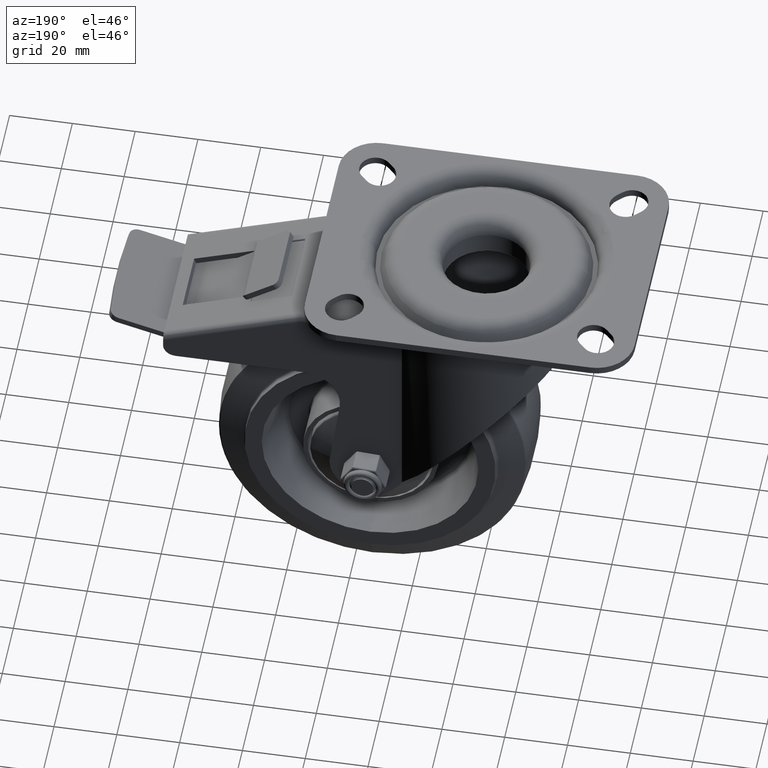
[diagram: clean part render]
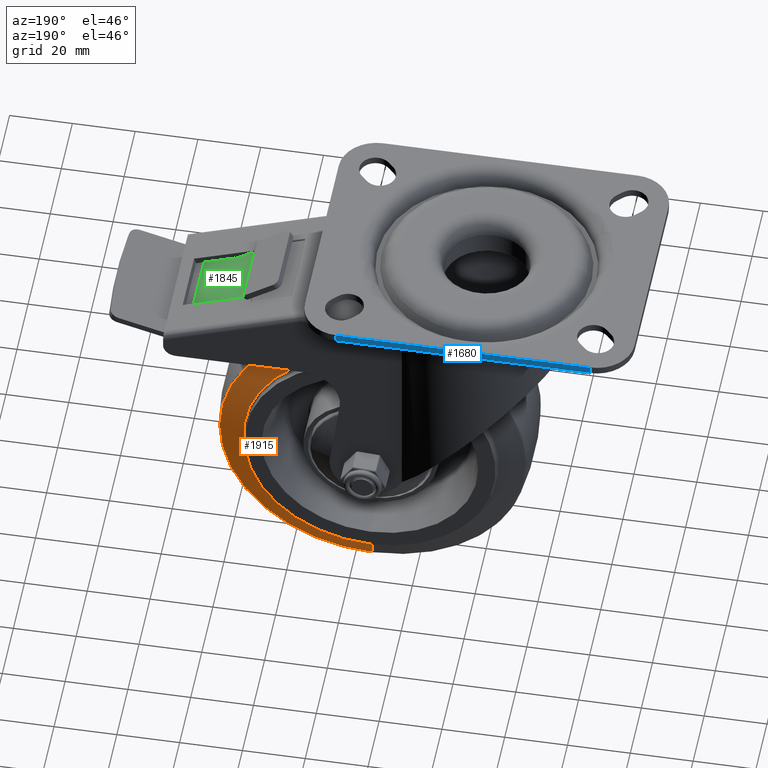
[diagram: same view with three faces highlighted in distinct colors, each labeled with its STEP entity id]
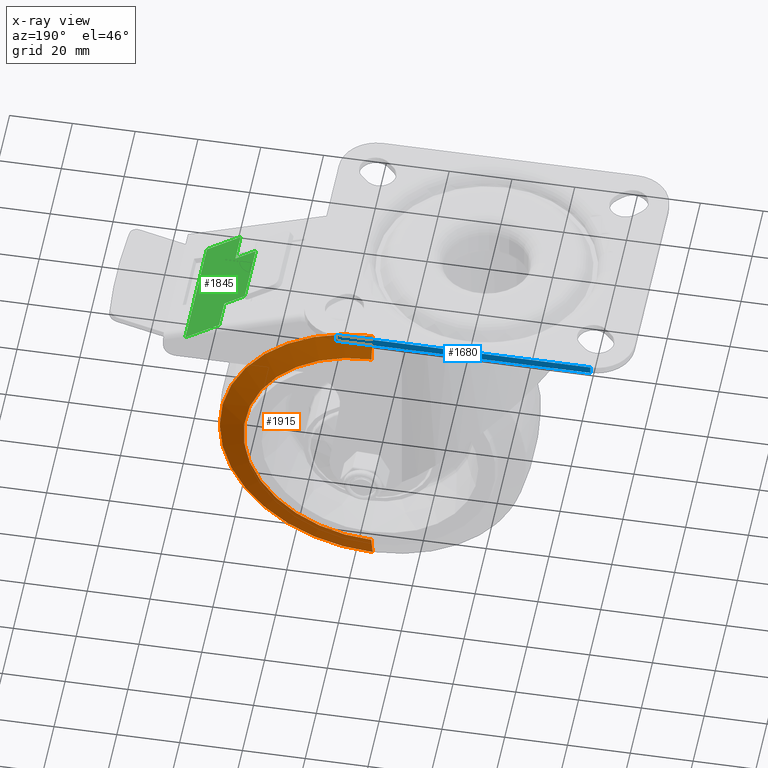
[diagram: x-ray of the same camera — body ghosted, the three highlighted faces saturated]
A machine part, auxiliary view with three faces highlighted in distinct colors.
The next image is the same camera in x-ray (body ghosted, the three faces saturated) — at least one of them is partly hidden behind the body in this view.
Their STEP definitions:

[orange] entity #1915 — the highlighted conical surface has half-angle 73.111 deg.
#1915=ADVANCED_FACE('38:11627',(#3556),#3557,.T.);
#3556=FACE_OUTER_BOUND('',#6462,.T.);
#3557=CONICAL_SURFACE('',#6463,0.044361281435328,1.27602925302234);
#6462=EDGE_LOOP('',(#16371,#16372,#16373,#16374));
#6463=AXIS2_PLACEMENT_3D('',#16375,#16376,#16377);
#16371=ORIENTED_EDGE('',*,*,#24078,.F.);
#16372=ORIENTED_EDGE('',*,*,#24072,.F.);
#16373=ORIENTED_EDGE('',*,*,#24079,.F.);
#16374=ORIENTED_EDGE('',*,*,#24080,.F.);
#16375=CARTESIAN_POINT('',(0.0,0.0144258634737131,0.0));
#16376=DIRECTION('',(-0.0,-1.0,0.0));
#16377=DIRECTION('',(0.0,0.0,1.0));
#24072=EDGE_CURVE('37:114500',#27586,#27588,#27589,.T.);
#24078=EDGE_CURVE('',#27588,#27599,#27600,.T.);
#24079=EDGE_CURVE('',#27601,#27586,#27602,.T.);
#24080=EDGE_CURVE('38:12224',#27599,#27601,#27603,.T.);
#27586=VERTEX_POINT('',#33647);
#27588=VERTEX_POINT('',#33649);
#27589=CIRCLE('',#33650,0.0487225628706559);
#27599=VERTEX_POINT('',#33662);
#27600=LINE('',#33663,#33664);
#27601=VERTEX_POINT('',#33665);
#27602=LINE('',#33666,#33667);
#27603=CIRCLE('',#33668,0.0407094830220747);
#33647=CARTESIAN_POINT('',(-5.96679306658044E-18,0.0131017269474262,-0.0487225628706559));
#33649=CARTESIAN_POINT('',(0.0,0.0131017269474262,0.0487225628706559));
#33650=AXIS2_PLACEMENT_3D('',#42645,#42646,#42647);
#33662=CARTESIAN_POINT('',(9.97094761558547E-18,0.0155345925794424,0.0407094830220747));
#33663=CARTESIAN_POINT('',(5.43269013158493E-18,0.0144258634737131,0.044361281435328));
#33664=VECTOR('',#42659,1.0);
#33665=CARTESIAN_POINT('',(-9.97094761558547E-18,0.0155345925794424,-0.0407094830220747));
#33666=CARTESIAN_POINT('',(-5.43269013158493E-18,0.0144258634737131,-0.044361281435328));
#33667=VECTOR('',#42660,1.0);
#33668=AXIS2_PLACEMENT_3D('',#42661,#42662,#42663);
#42645=CARTESIAN_POINT('',(0.0,0.0131017269474262,8.61381393508886E-20));
#42646=DIRECTION('',(-0.0,-1.0,-6.57456377289338E-18));
#42647=DIRECTION('',(0.0,-6.57456377289338E-18,1.0));
#42659=DIRECTION('',(-1.17182758345179E-16,0.290516977925249,-0.956869837301386));
#42660=DIRECTION('',(-1.17182758345179E-16,-0.290516977925249,-0.956869837301386));
#42661=CARTESIAN_POINT('',(0.0,0.0155345925794424,0.0));
#42662=DIRECTION('',(0.0,1.0,0.0));
#42663=DIRECTION('',(-1.22464679914735E-16,0.0,-1.0));

[blue] entity #1680 — the highlighted planar face has unit normal (0, 1, 0).
#1680=ADVANCED_FACE('99:63520',(#3173),#3174,.T.);
#3173=FACE_OUTER_BOUND('',#5589,.T.);
#3174=PLANE('',#5590);
#5589=EDGE_LOOP('',(#14838,#14839,#14840,#14841));
#5590=AXIS2_PLACEMENT_3D('',#14842,#14843,#14844);
#14838=ORIENTED_EDGE('',*,*,#23632,.F.);
#14839=ORIENTED_EDGE('',*,*,#23410,.T.);
#14840=ORIENTED_EDGE('',*,*,#23217,.F.);
#14841=ORIENTED_EDGE('',*,*,#23388,.T.);
#14842=CARTESIAN_POINT('',(0.0,0.0425,0.0));
#14843=DIRECTION('',(-0.0,1.0,0.0));
#14844=DIRECTION('',(1.0,0.0,0.0));
#23217=EDGE_CURVE('99:64660',#26184,#26186,#26187,.T.);
#23388=EDGE_CURVE('99:63895',#26184,#26504,#26506,.T.);
#23410=EDGE_CURVE('99:63964',#26538,#26186,#26539,.T.);
#23632=EDGE_CURVE('99:64651',#26538,#26504,#26867,.T.);
#26184=VERTEX_POINT('',#30984);
#26186=VERTEX_POINT('',#30986);
#26187=LINE('',#30987,#30988);
#26504=VERTEX_POINT('',#31371);
#26506=LINE('',#31373,#31374);
#26538=VERTEX_POINT('',#31416);
#26539=LINE('',#31417,#31418);
#26867=LINE('',#31950,#31951);
#30984=CARTESIAN_POINT('',(-0.0405,0.0425,0.0));
#30986=CARTESIAN_POINT('',(-0.0405,0.0425,-0.0025));
#30987=CARTESIAN_POINT('',(-0.0405,0.0425,0.0));
#30988=VECTOR('',#41282,1.0);
#31371=CARTESIAN_POINT('',(0.0405,0.0425,0.0));
#31373=CARTESIAN_POINT('',(-0.0525,0.0425,0.0));
#31374=VECTOR('',#41661,1.0);
#31416=CARTESIAN_POINT('',(0.0405,0.0425,-0.0025));
#31417=CARTESIAN_POINT('',(-0.0525,0.0425,-0.0025));
#31418=VECTOR('',#41705,1.0);
#31950=CARTESIAN_POINT('',(0.0405,0.0425,0.0));
#31951=VECTOR('',#41961,1.0);
#41282=DIRECTION('',(0.0,0.0,-1.0));
#41661=DIRECTION('',(1.0,0.0,0.0));
#41705=DIRECTION('',(-1.0,-0.0,-0.0));
#41961=DIRECTION('',(0.0,0.0,1.0));

[green] entity #1845 — the highlighted planar face has unit normal (0.5717, 0, 0.8204).
#1845=ADVANCED_FACE('118:13413',(#3491),#3492,.T.);
#3491=FACE_OUTER_BOUND('',#6397,.T.);
#3492=PLANE('',#6398);
#6397=EDGE_LOOP('',(#16098,#16099,#16100,#16101,#16102,#16103,#16104,#16105));
#6398=AXIS2_PLACEMENT_3D('',#16106,#16107,#16108);
#16098=ORIENTED_EDGE('',*,*,#23996,.F.);
#16099=ORIENTED_EDGE('',*,*,#24001,.T.);
#16100=ORIENTED_EDGE('',*,*,#24002,.T.);
#16101=ORIENTED_EDGE('',*,*,#24003,.T.);
#16102=ORIENTED_EDGE('',*,*,#24004,.T.);
#16103=ORIENTED_EDGE('',*,*,#24005,.T.);
#16104=ORIENTED_EDGE('',*,*,#24006,.T.);
#16105=ORIENTED_EDGE('',*,*,#24007,.T.);
#16106=CARTESIAN_POINT('',(0.0875564910167572,0.0,-0.0303229460794351));
#16107=DIRECTION('',(0.571725300536254,0.0,0.820445111343063));
#16108=DIRECTION('',(-0.820445111343063,0.0,0.571725300536254));
#23996=EDGE_CURVE('118:13494',#27469,#27471,#27472,.T.);
#24001=EDGE_CURVE('118:13503',#27469,#27479,#27480,.T.);
#24002=EDGE_CURVE('118:13506',#27479,#27481,#27482,.T.);
#24003=EDGE_CURVE('118:13509',#27481,#27483,#27484,.F.);
#24004=EDGE_CURVE('118:13512',#27483,#27485,#27486,.F.);
#24005=EDGE_CURVE('118:13515',#27485,#27487,#27488,.T.);
#24006=EDGE_CURVE('118:13518',#27487,#27489,#27490,.T.);
#24007=EDGE_CURVE('118:13521',#27489,#27471,#27491,.T.);
#27469=VERTEX_POINT('',#33450);
#27471=VERTEX_POINT('',#33452);
#27472=LINE('',#33453,#33454);
#27479=VERTEX_POINT('',#33462);
#27480=LINE('',#33463,#33464);
#27481=VERTEX_POINT('',#33465);
#27482=LINE('',#33466,#33467);
#27483=VERTEX_POINT('',#33468);
#27484=LINE('',#33469,#33470);
#27485=VERTEX_POINT('',#33471);
#27486=LINE('',#33472,#33473);
#27487=VERTEX_POINT('',#33474);
#27488=LINE('',#33475,#33476);
#27489=VERTEX_POINT('',#33477);
#27490=LINE('',#33478,#33479);
#27491=LINE('',#33480,#33481);
#33450=CARTESIAN_POINT('',(0.0925713108181167,0.0195,-0.0338175117955669));
#33452=CARTESIAN_POINT('',(0.0925713108181167,-0.0195,-0.0338175117955669));
#33453=CARTESIAN_POINT('',(0.0925713108181167,0.0,-0.0338175117955669));
#33454=VECTOR('',#42511,1.0);
#33462=CARTESIAN_POINT('',(0.081778765780946,0.0195,-0.0262967514550895));
#33463=CARTESIAN_POINT('',(0.081778765780946,0.0195,-0.0262967514550895));
#33464=VECTOR('',#42522,0.999999999999999);
#33465=CARTESIAN_POINT('',(0.081778765780946,0.01,-0.0262967514550895));
#33466=CARTESIAN_POINT('',(0.081778765780946,0.0,-0.0262967514550895));
#33467=VECTOR('',#42523,1.0);
#33468=CARTESIAN_POINT('',(0.0753021891252864,0.01,-0.0217835638161973));
#33469=CARTESIAN_POINT('',(0.0860867989985154,0.01,-0.0292987945558194));
#33470=VECTOR('',#42524,0.999999999999999);
#33471=CARTESIAN_POINT('',(0.0753021891252864,-0.01,-0.0217835638161973));
#33472=CARTESIAN_POINT('',(0.0753021891252864,0.0,-0.0217835638161973));
#33473=VECTOR('',#42525,0.999999999999999);
#33474=CARTESIAN_POINT('',(0.081778765780946,-0.01,-0.0262967514550895));
#33475=CARTESIAN_POINT('',(0.0860867989985154,-0.01,-0.0292987945558194));
#33476=VECTOR('',#42526,0.999999999999999);
#33477=CARTESIAN_POINT('',(0.081778765780946,-0.0195,-0.0262967514550895));
#33478=CARTESIAN_POINT('',(0.081778765780946,0.0,-0.0262967514550895));
#33479=VECTOR('',#42527,1.0);
#33480=CARTESIAN_POINT('',(0.081778765780946,-0.0195,-0.0262967514550895));
#33481=VECTOR('',#42528,0.999999999999999);
#42511=DIRECTION('',(-0.0,-1.0,-0.0));
#42522=DIRECTION('',(-0.820445111343063,0.0,0.571725300536254));
#42523=DIRECTION('',(-0.0,-1.0,-0.0));
#42524=DIRECTION('',(0.820445111343063,0.0,-0.571725300536254));
#42525=DIRECTION('',(0.0,1.0,0.0));
#42526=DIRECTION('',(0.820445111343063,0.0,-0.571725300536254));
#42527=DIRECTION('',(-0.0,-1.0,-0.0));
#42528=DIRECTION('',(0.820445111343063,0.0,-0.571725300536254));